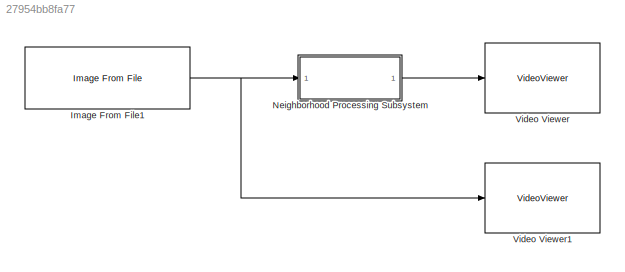
MODEL slx_27954bb8fa77
KIND model
CONFIG AbsTol = auto
CONFIG EnableMultiTasking = off
CONFIG FixedStep = auto
CONFIG MaxStep = auto
CONFIG MinStep = auto
CONFIG RelTol = 1e-3
CONFIG SampleTimeConstraint = Unconstrained
CONFIG SolverName = VariableStepAuto
CONFIG StartTime = 0.0
CONFIG StopTime = 10.0
BLOCK [Reference] Image From File1  REF=visionsources/Image From File
  SourceBlock = visionsources/Image From File
  SourceType = Image From File
  Tag = vipblks_nd
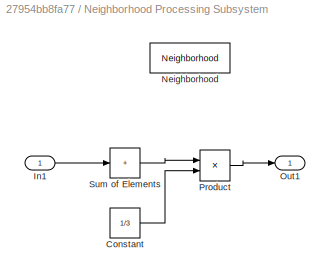
BLOCK [SubSystem] Neighborhood Processing Subsystem
  TreatAsAtomicUnit = on
BLOCK [Constant] Neighborhood Processing Subsystem/Constant
  Value = 1/3
BLOCK [Inport] Neighborhood Processing Subsystem/In1
BLOCK [Neighborhood] Neighborhood Processing Subsystem/Neighborhood
  NeighborhoodSize = [1 1 3]
  OutputSize = Valid
  ProcessingOffset = [0 0 0]
  Stride = [1 1 1]
BLOCK [Outport] Neighborhood Processing Subsystem/Out1
  ConcatenationDimension = [1 2]
BLOCK [Product] Neighborhood Processing Subsystem/Product
BLOCK [Sum] Neighborhood Processing Subsystem/Sum of Elements
  IconShape = rectangular
  Inputs = +
BLOCK [VideoViewer] Video Viewer
  FigPos = [675.4 790 417.6 304]
  ScopeSpecificationString = vipscopes.VideoViewerScopeCfg('CurrentConfiguration', extmgr.ConfigurationSet(extmgr.Configuration('Core','General UI',true),extmgr.Configuration('Core','Source UI',true),extmgr.Configuration('Sources','WiredSimulink',true),extmgr.Configuration('Visuals','Video',true),extmgr.Configuration('Tools','Image Navigation Tools',true),extmgr.Configuration('Tools','Image Tool',true),extmgr.Configuration('T...<+104ch>
BLOCK [VideoViewer] Video Viewer1
  FigPos = [245 540.4 417.6 304]
  ScopeSpecificationString = vipscopes.VideoViewerScopeCfg('CurrentConfiguration', extmgr.ConfigurationSet(extmgr.Configuration('Core','General UI',true),extmgr.Configuration('Core','Source UI',true),extmgr.Configuration('Sources','WiredSimulink',true),extmgr.Configuration('Visuals','Video',true),extmgr.Configuration('Tools','Image Navigation Tools',true),extmgr.Configuration('Tools','Image Tool',true),extmgr.Configuration('T...<+105ch>
NET Image From File1:1 -> Neighborhood Processing Subsystem:1, Video Viewer1:1
LINE Neighborhood Processing Subsystem/Constant:1 -> Neighborhood Processing Subsystem/Product:2
LINE Neighborhood Processing Subsystem/In1:1 -> Neighborhood Processing Subsystem/Sum of Elements:1
LINE Neighborhood Processing Subsystem/Product:1 -> Neighborhood Processing Subsystem/Out1:1
LINE Neighborhood Processing Subsystem/Sum of Elements:1 -> Neighborhood Processing Subsystem/Product:1
LINE Neighborhood Processing Subsystem:1 -> Video Viewer:1
note: NET lines group one-source signal fan-out (src -> all destinations, sorted); 1:1 wires keep LINE
